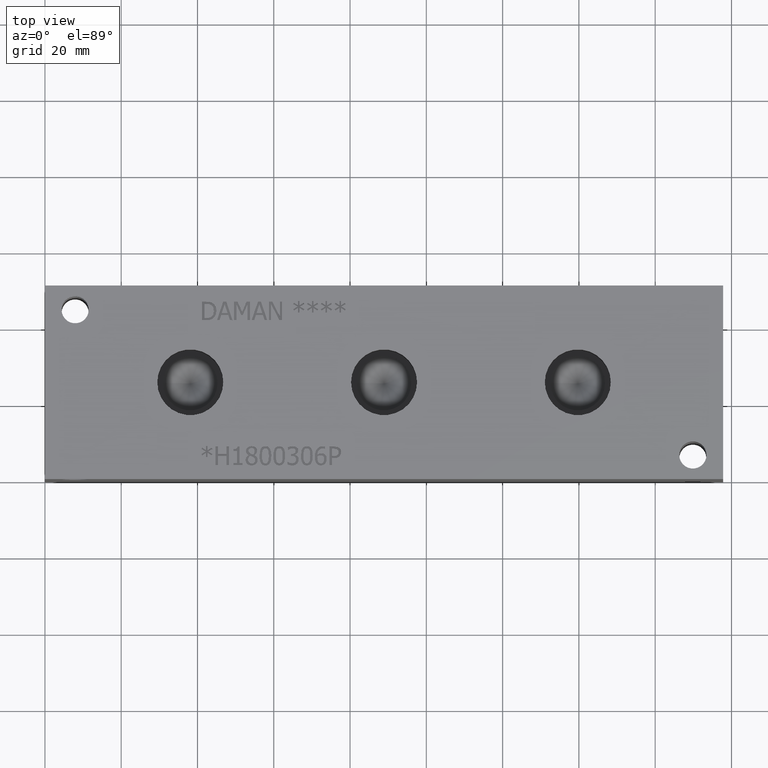
[diagram: clean part render]
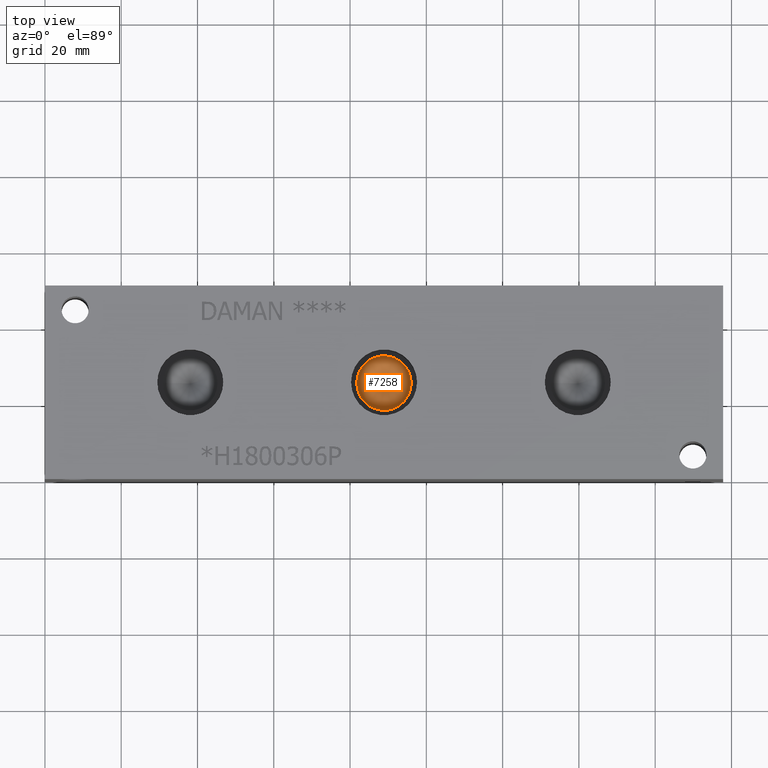
[diagram: same view with one face highlighted and labeled with its STEP entity id]
A machine part, top view. The second image highlights one B-rep face of the part: STEP entity #7258.
In plain terms, the highlighted conical surface has half-angle 60 deg.
Its self-contained STEP definition (entity closure, byte-faithful):
#51=CONICAL_SURFACE('',#7589,3.57505,1.0471975511966);
#105=CIRCLE('',#7590,7.1501);
#106=CIRCLE('',#7591,7.1501);
#853=FACE_OUTER_BOUND('',#1260,.T.);
#1260=EDGE_LOOP('',(#6262,#6263,#6264,#6265));
#1978=LINE('',#12396,#2681);
#2681=VECTOR('',#8910,3.57505);
#3350=VERTEX_POINT('',#12392);
#3351=VERTEX_POINT('',#12393);
#3352=VERTEX_POINT('',#12395);
#4337=EDGE_CURVE('',#3350,#3351,#105,.T.);
#4338=EDGE_CURVE('',#3351,#3352,#1978,.T.);
#4339=EDGE_CURVE('',#3351,#3350,#106,.T.);
#6262=ORIENTED_EDGE('',*,*,#4337,.T.);
#6263=ORIENTED_EDGE('',*,*,#4338,.T.);
#6264=ORIENTED_EDGE('',*,*,#4338,.F.);
#6265=ORIENTED_EDGE('',*,*,#4339,.T.);
#7258=ADVANCED_FACE('',(#853),#51,.F.);
#7589=AXIS2_PLACEMENT_3D('',#12391,#8906,#8907);
#7590=AXIS2_PLACEMENT_3D('',#12394,#8908,#8909);
#7591=AXIS2_PLACEMENT_3D('',#12397,#8911,#8912);
#8906=DIRECTION('center_axis',(0.,0.,1.));
#8907=DIRECTION('ref_axis',(1.,0.,0.));
#8908=DIRECTION('center_axis',(0.,0.,1.));
#8909=DIRECTION('ref_axis',(1.,0.,0.));
#8910=DIRECTION('',(0.866025403784439,1.06057523872491E-16,-0.5));
#8911=DIRECTION('center_axis',(0.,0.,1.));
#8912=DIRECTION('ref_axis',(1.,0.,0.));
#12391=CARTESIAN_POINT('Origin',(88.9,25.4,36.5883339201336));
#12392=CARTESIAN_POINT('',(96.0501,25.4,38.65239));
#12393=CARTESIAN_POINT('',(81.7499,25.4,38.65239));
#12394=CARTESIAN_POINT('Origin',(88.9,25.4,38.65239));
#12395=CARTESIAN_POINT('',(88.9,25.4,34.5242778402673));
#12396=CARTESIAN_POINT('',(85.32495,25.4,36.5883339201336));
#12397=CARTESIAN_POINT('Origin',(88.9,25.4,38.65239));